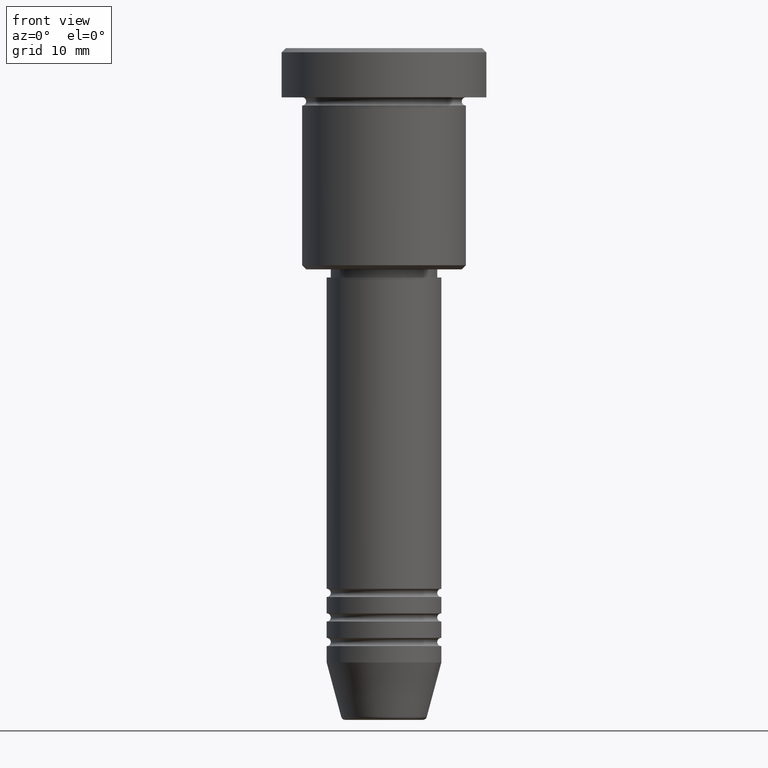
[diagram: clean part render]
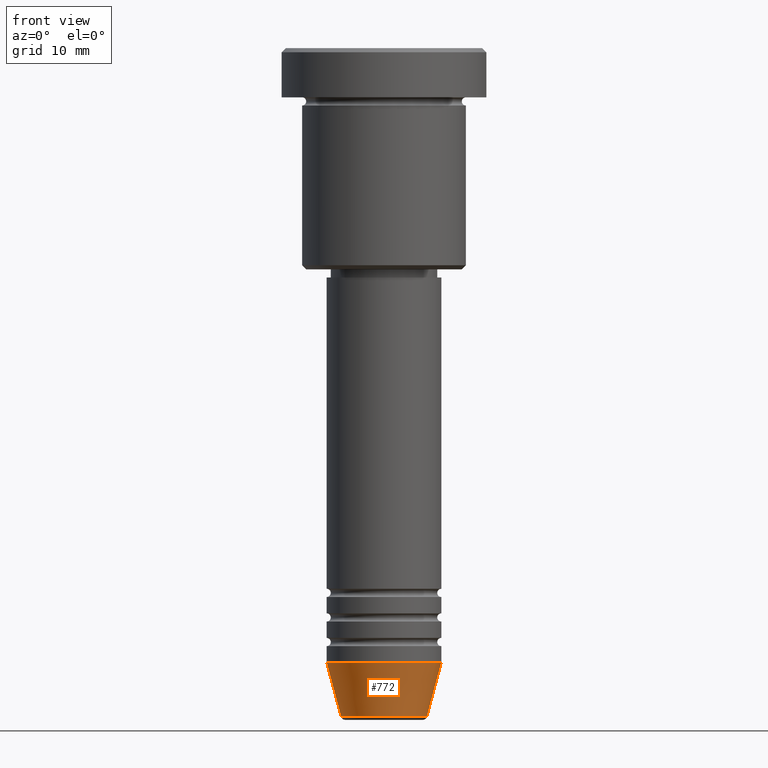
[diagram: same view with one face highlighted and labeled with its STEP entity id]
A machine part, front view. The second image highlights one B-rep face of the part: STEP entity #772.
In plain terms, the highlighted conical surface has half-angle 15 deg.
Its self-contained STEP definition (entity closure, byte-faithful):
#1 = CARTESIAN_POINT ( 'NONE',  ( -5.223655072137187716, 7.484830028987059188E-16, -81.62940952255128479 ) ) ;
#8 = CIRCLE ( 'NONE', #293, 7.000000000000000000 ) ;
#69 = EDGE_CURVE ( 'NONE', #555, #365, #207, .T. ) ;
#74 = VERTEX_POINT ( 'NONE', #1111 ) ;
#107 = AXIS2_PLACEMENT_3D ( 'NONE', #897, #907, #1107 ) ;
#132 = CARTESIAN_POINT ( 'NONE',  ( 7.000000000000000000, 0.000000000000000000, -75.00000000000001421 ) ) ;
#137 = ORIENTED_EDGE ( 'NONE', *, *, #979, .T. ) ;
#150 = ORIENTED_EDGE ( 'NONE', *, *, #69, .T. ) ;
#158 = CARTESIAN_POINT ( 'NONE',  ( 0.000000000000000000, 0.000000000000000000, -81.62940952255128479 ) ) ;
#207 = LINE ( 'NONE', #132, #632 ) ;
#216 = DIRECTION ( 'NONE',  ( -0.2588190451025214056, 3.169619151431772953E-17, 0.9659258262890680902 ) ) ;
#235 = ORIENTED_EDGE ( 'NONE', *, *, #861, .F. ) ;
#256 = CONICAL_SURFACE ( 'NONE', #107, 7.000000000000000000, 0.2617993877991501295 ) ;
#263 = CARTESIAN_POINT ( 'NONE',  ( 7.000000000000000000, 0.000000000000000000, -75.00000000000001421 ) ) ;
#293 = AXIS2_PLACEMENT_3D ( 'NONE', #352, #620, #712 ) ;
#305 = DIRECTION ( 'NONE',  ( 1.000000000000000000, 0.000000000000000000, 0.000000000000000000 ) ) ;
#350 = AXIS2_PLACEMENT_3D ( 'NONE', #158, #961, #305 ) ;
#352 = CARTESIAN_POINT ( 'NONE',  ( 0.000000000000000000, 0.000000000000000000, -75.00000000000001421 ) ) ;
#365 = VERTEX_POINT ( 'NONE', #263 ) ;
#413 = EDGE_CURVE ( 'NONE', #74, #365, #8, .T. ) ;
#425 = CARTESIAN_POINT ( 'NONE',  ( -7.000000000000000000, 8.572527594031473190E-16, -75.00000000000001421 ) ) ;
#455 = VERTEX_POINT ( 'NONE', #1 ) ;
#541 = EDGE_LOOP ( 'NONE', ( #235, #137, #150, #588 ) ) ;
#555 = VERTEX_POINT ( 'NONE', #1122 ) ;
#567 = LINE ( 'NONE', #425, #854 ) ;
#588 = ORIENTED_EDGE ( 'NONE', *, *, #413, .F. ) ;
#620 = DIRECTION ( 'NONE',  ( -0.000000000000000000, -0.000000000000000000, 1.000000000000000000 ) ) ;
#632 = VECTOR ( 'NONE', #755, 1000.000000000000000 ) ;
#712 = DIRECTION ( 'NONE',  ( 1.000000000000000000, 0.000000000000000000, 0.000000000000000000 ) ) ;
#755 = DIRECTION ( 'NONE',  ( 0.2588190451025214056, 0.000000000000000000, 0.9659258262890680902 ) ) ;
#772 = ADVANCED_FACE ( 'NONE', ( #991 ), #256, .T. ) ;
#776 = CIRCLE ( 'NONE', #350, 5.223655072137187716 ) ;
#854 = VECTOR ( 'NONE', #216, 1000.000000000000000 ) ;
#861 = EDGE_CURVE ( 'NONE', #455, #74, #567, .T. ) ;
#897 = CARTESIAN_POINT ( 'NONE',  ( 0.000000000000000000, 0.000000000000000000, -75.00000000000001421 ) ) ;
#907 = DIRECTION ( 'NONE',  ( -0.000000000000000000, -0.000000000000000000, 1.000000000000000000 ) ) ;
#961 = DIRECTION ( 'NONE',  ( -0.000000000000000000, -0.000000000000000000, 1.000000000000000000 ) ) ;
#979 = EDGE_CURVE ( 'NONE', #455, #555, #776, .T. ) ;
#991 = FACE_OUTER_BOUND ( 'NONE', #541, .T. ) ;
#1107 = DIRECTION ( 'NONE',  ( 1.000000000000000000, 0.000000000000000000, 0.000000000000000000 ) ) ;
#1111 = CARTESIAN_POINT ( 'NONE',  ( -7.000000000000000000, 8.572527594031473190E-16, -75.00000000000001421 ) ) ;
#1122 = CARTESIAN_POINT ( 'NONE',  ( 5.223655072137187716, 0.000000000000000000, -81.62940952255128479 ) ) ;